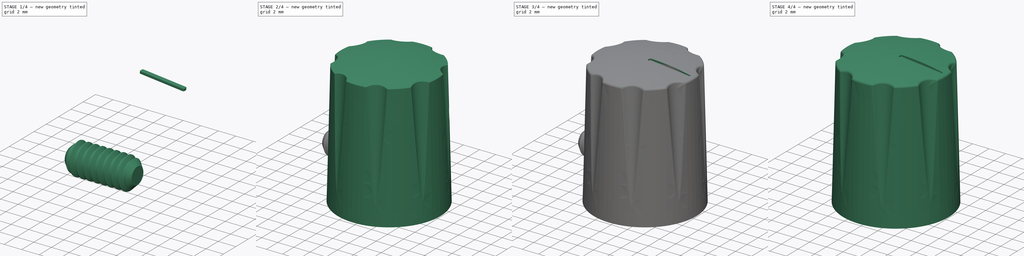
[diagram: build sequence overview — one tinted view per stage of 4, left to right]
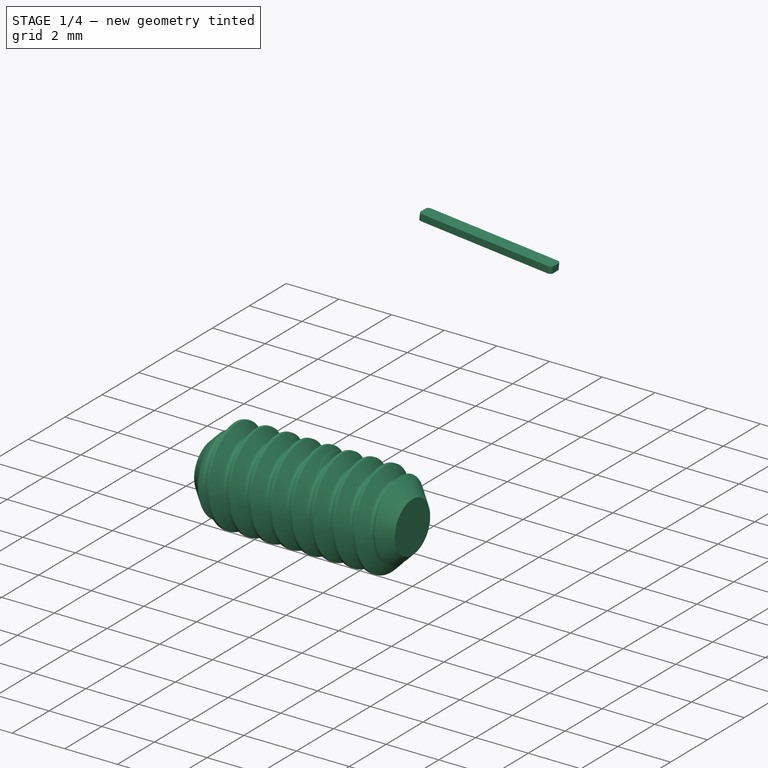
[diagram: stage 1 of 4 — iso view after this stage's code; geometry added in this stage tinted green]
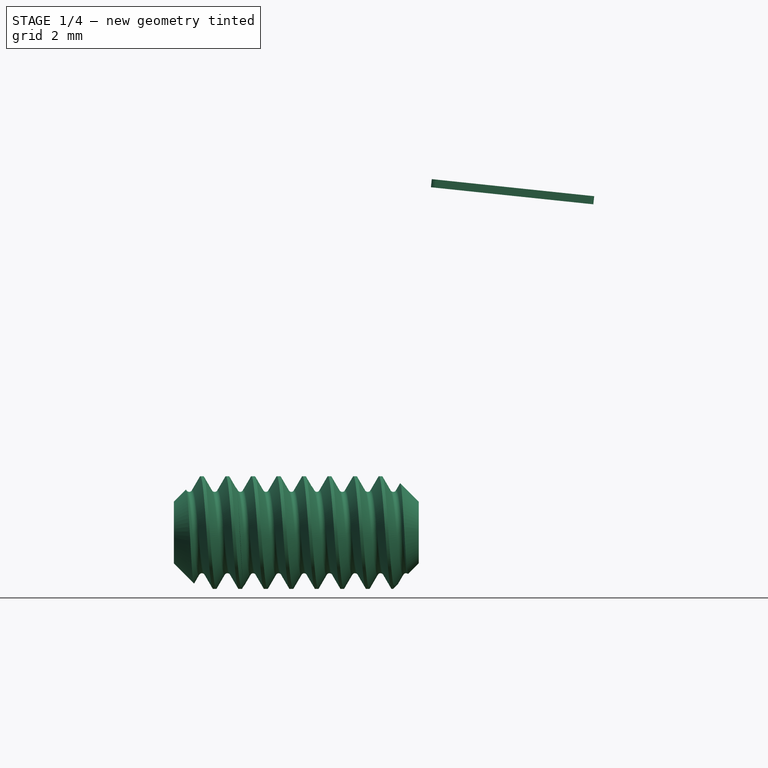
[diagram: stage 1 of 4 — front view after this stage's code; geometry added in this stage tinted green]
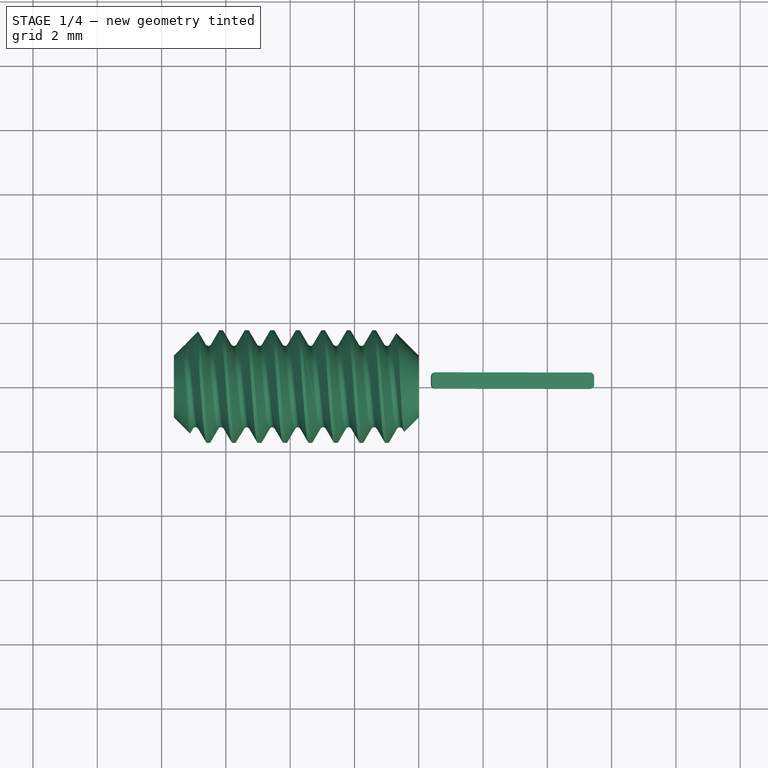
[diagram: stage 1 of 4 — top view after this stage's code; geometry added in this stage tinted green]
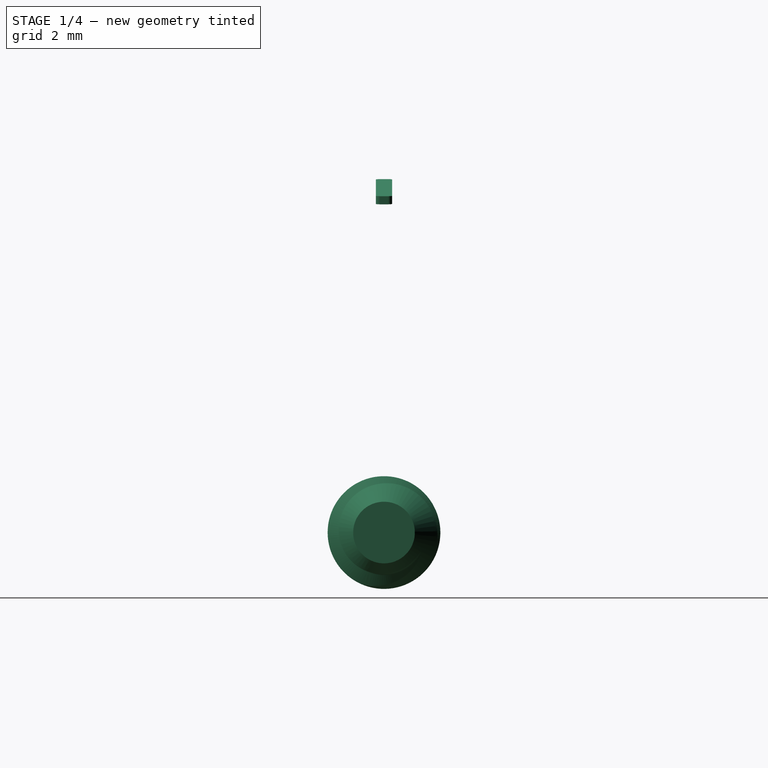
[diagram: stage 1 of 4 — right view after this stage's code; geometry added in this stage tinted green]
FCSTD DOCUMENT  (FreeCAD 0.21R33771 (Git))
Label: davies-1900h
License: All rights reserved
LicenseURL: http://en.wikipedia.org/wiki/All_rights_reserved
objects: Sketcher::SketchObject×5, PartDesign::Pocket×3, PartDesign::Body×2, Part::FeaturePython×2, PartDesign::Revolution×1, PartDesign::PolarPattern×1, PartDesign::Fillet×1, Part::Cut×1, PartDesign::Pad×1, Part::Compound×1
note: 24 computed .brp shape members not serialized (recipe doc carries the construction recipe); baked Part::Feature solids carry a one-line shape summary decoded from their .brp

FEATURE [PartDesign::Body] Body  label="Corps"
  Group = -> [Sketch,Revolution,Sketch001,Pocket,PolarPattern,Fillet,Sketch002,Pocket001,Sketch003,Pocket002]
  Origin = -> Origin
  Tip = -> Pocket001
FEATURE [Part::FeaturePython] ThreadedRod  label="#6x7.619999999999999-ThreadedRod"  # Fasteners workbench fastener (typed FeaturePython)
  Placement = pos=(0,0,4.826) rot=(0,1,0;1.5708rad)
  diameter = 7
  diameterCustom = 6
  invert = false
  leftHanded = false
  length = 7.62
  matchOuter = false
  offset = 0
  pitchCustom = 1
  thread = true
  type = 5
FEATURE [Part::FeaturePython] Screw  label="#6x1/8in-Screw"  # Fasteners workbench fastener (typed FeaturePython)
  Placement = pos=(-5.9436,0,4.826) rot=(0,-1,0;1.5708rad)
  diameter = 7
  invert = false
  leftHanded = false
  length = 0
  lengthCustom = 3.175
  matchOuter = false
  offset = 0
  thread = true
  type = 12
FEATURE [Sketcher::SketchObject] Sketch004
  AttachmentOffset = pos=(-0.127,0,15.621) rot=(0,1,0;0.10472rad)
  FullyConstrained = true
  MapMode = 5
  Placement = pos=(-0.127,0,15.621) rot=(0,1,0;0.10472rad)
  Support = -> [XY_Plane001]
  sketch-geometry (13):
    g0: LineSegment StartX=5.588 StartY=-0.127 StartZ=0 EndX=5.588 EndY=0.127 EndZ=0
    g1: LineSegment StartX=5.461 StartY=0.254 StartZ=0 EndX=0.635 EndY=0.254 EndZ=0
    g2: LineSegment StartX=0.508 StartY=0.127 StartZ=0 EndX=0.508 EndY=-0.127 EndZ=0
    g3: LineSegment StartX=0.635 StartY=-0.254 StartZ=0 EndX=5.461 EndY=-0.254 EndZ=0
    g4: GeomPoint X=3.048 Y=0 Z=0
    g5: ArcOfCircle CenterX=0.635 CenterY=0.127 CenterZ=0 NormalX=0 NormalY=0 NormalZ=1 AngleXU=0 Radius=0.127 StartAngle=1.5708 EndAngle=3.14159
    g6: GeomPoint X=0.508 Y=0.254 Z=0
    g7: ArcOfCircle CenterX=0.635 CenterY=-0.127 CenterZ=0 NormalX=0 NormalY=0 NormalZ=1 AngleXU=0 Radius=0.127 StartAngle=3.14159 EndAngle=4.71239
    g8: GeomPoint X=0.508 Y=-0.254 Z=0
    g9: ArcOfCircle CenterX=5.461 CenterY=-0.127 CenterZ=0 NormalX=0 NormalY=0 NormalZ=1 AngleXU=0 Radius=0.127 StartAngle=4.71239 EndAngle=6.28319
    g10: GeomPoint X=5.588 Y=-0.254 Z=0
    g11: ArcOfCircle CenterX=5.461 CenterY=0.127 CenterZ=0 NormalX=0 NormalY=0 NormalZ=1 AngleXU=0 Radius=0.127 StartAngle=0 EndAngle=1.5708
    g12: GeomPoint X=5.588 Y=0.254 Z=0
  constraints (29):
    c: Horizontal(g1)
    c: Horizontal(g3)
    c: Vertical(g0)
    c: Vertical(g2)
    c: Symmetric(g6,g10,g4)
    c: PointOnObject(g4,g-1)
    c: DistanceY(g8,g6) = 0.508
    c: DistanceX(g6,g12) = 5.08
    c: DistanceX(g-1,g8) = 0.508
    c: PointOnObject(g6,g1)
    c: PointOnObject(g6,g2)
    c: Tangent(g1,g5) = -1.5708
    c: Tangent(g2,g5) = -1.5708
    c: PointOnObject(g8,g2)
    c: PointOnObject(g8,g3)
    c: Tangent(g2,g7) = -1.5708
    c: Tangent(g3,g7) = -1.5708
    c: PointOnObject(g10,g3)
    c: PointOnObject(g10,g0)
    c: Tangent(g3,g9) = -1.5708
    c: Tangent(g0,g9) = -1.5708
    c: PointOnObject(g12,g0)
    c: PointOnObject(g12,g1)
    c: Tangent(g0,g11) = -1.5708
    c: Tangent(g1,g11) = -1.5708
    c: Equal(g5,g7)
    c: Equal(g5,g9)
    c: Equal(g5,g11)
    c: Radius(g5) = 0.127
FEATURE [PartDesign::Pad] Pad
  Direction = (0.104528,0,0.994522)
  Length = 0.254
  Length2 = 10
  Profile = -> Sketch004
  ReferenceAxis = -> Sketch004 [N_Axis]
  Type = 0
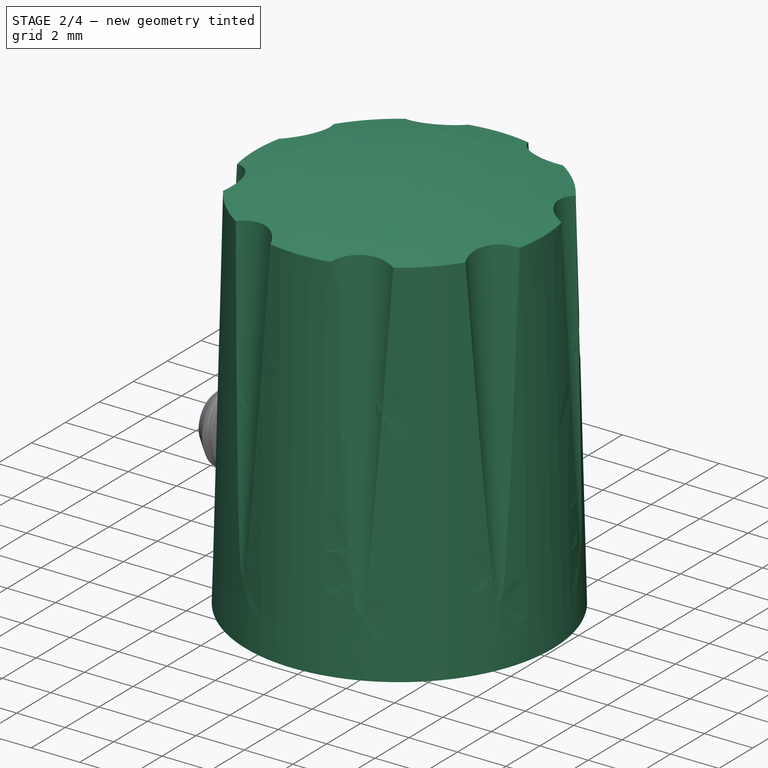
[diagram: stage 2 of 4 — iso view after this stage's code; geometry added in this stage tinted green]
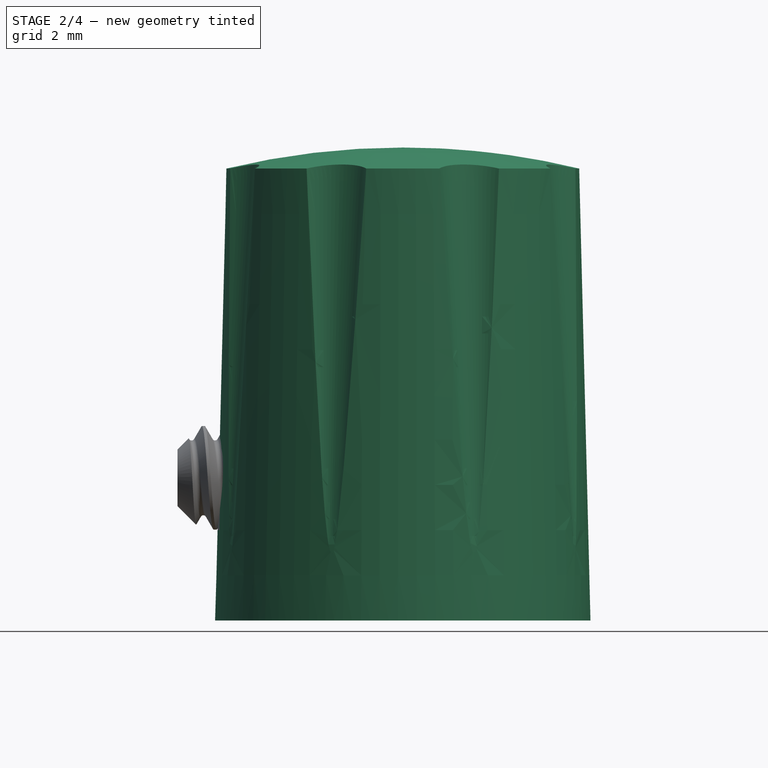
[diagram: stage 2 of 4 — front view after this stage's code; geometry added in this stage tinted green]
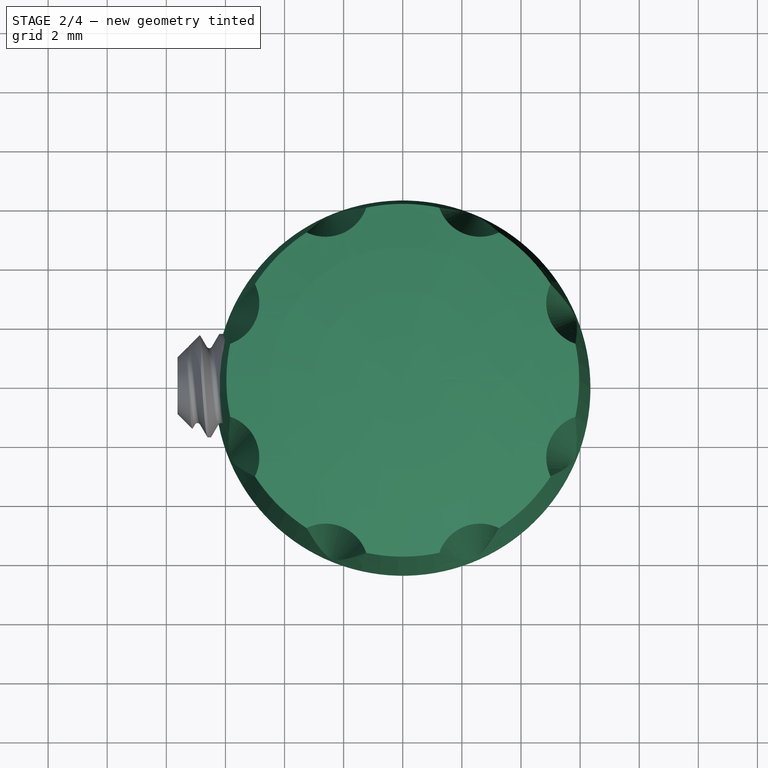
[diagram: stage 2 of 4 — top view after this stage's code; geometry added in this stage tinted green]
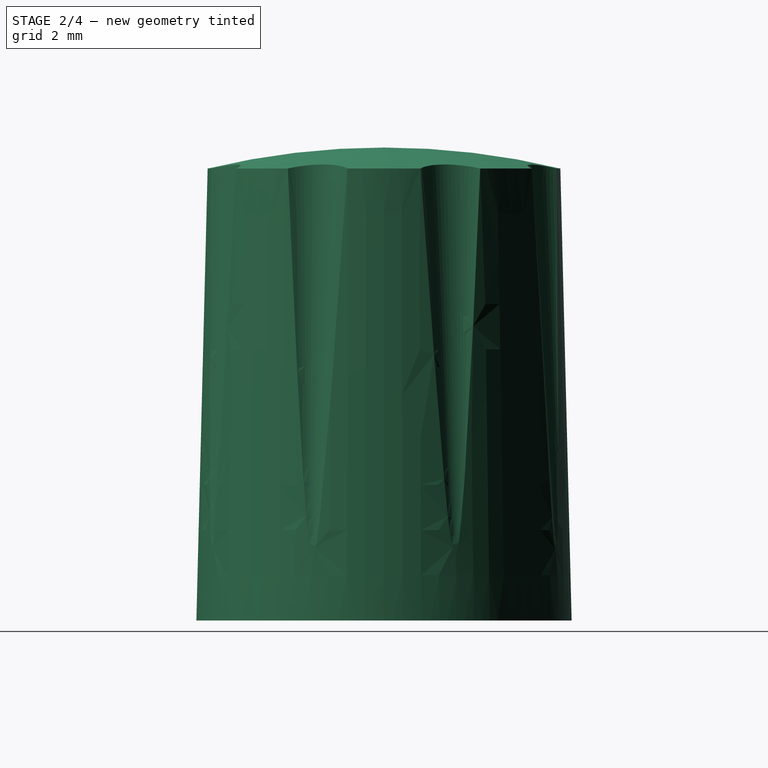
[diagram: stage 2 of 4 — right view after this stage's code; geometry added in this stage tinted green]
FEATURE [Sketcher::SketchObject] Sketch
  FullyConstrained = true
  MapMode = 5
  Placement = pos=(0,0,0) rot=(1,0,0;1.5708rad)
  Support = -> [XZ_Plane]
  sketch-geometry (6):
    g0: ArcOfCircle CenterX=0 CenterY=-9.398 CenterZ=0 NormalX=0 NormalY=0 NormalZ=1 AngleXU=0 Radius=25.4 StartAngle=1.33358 EndAngle=1.5708
    g1: LineSegment StartX=5.969 StartY=15.2907 StartZ=0 EndX=6.35 EndY=0 EndZ=0
    g2: LineSegment StartX=6.35 StartY=0 StartZ=0 EndX=3.175 EndY=0 EndZ=0
    g3: LineSegment StartX=0 StartY=16.002 StartZ=0 EndX=0 EndY=14.5331 EndZ=0
    g4: LineSegment StartX=0 StartY=14.5331 StartZ=0 EndX=3.175 EndY=12.7 EndZ=0
    g5: LineSegment StartX=3.175 StartY=12.7 StartZ=0 EndX=3.175 EndY=0 EndZ=0
  constraints (19):
    c: Coincident(g0,g1)
    c: PointOnObject(g1,g-1)
    c: Coincident(g1,g2)
    c: Coincident(g3,g0)
    c: Vertical(g3)
    c: DistanceY(g-1,g3) = 16.002
    c: Radius(g0) = 25.4
    c: DistanceX(g-1,g0) = 5.969
    c: DistanceX(g-1,g2) = 6.35
    c: PointOnObject(g0,g-2)
    c: Coincident(g4,g5)
    c: Vertical(g5)
    c: DistanceY(g5,g5) = 12.7
    c: Coincident(g2,g5)
    c: Coincident(g3,g4)
    c: Horizontal(g2)
    c: DistanceX(g4,g4) = 3.175
    c: PointOnObject(g3,g-2)
    c: Angle(g4,g5) = 2.0944
FEATURE [PartDesign::Revolution] Revolution  label="MainBodyRevolution"
  Angle = 360
  Axis = (0,-2e-16,1)
  Base = (0,0,0)
  Placement = pos=(0,0,0) rot=(1,0,0;1.5708rad)
  Profile = -> Sketch
  ReferenceAxis = -> Sketch [V_Axis]
  Reversed = true
FEATURE [Sketcher::SketchObject] Sketch001
  AttachmentOffset = pos=(0,0,16.002) rot=(0,0,1;0rad)
  FullyConstrained = true
  MapMode = 5
  Placement = pos=(0,0,16.002) rot=(0,0,1;0rad)
  Support = -> [XY_Plane]
  sketch-geometry (10):
    g0: Circle CenterX=2.62444 CenterY=6.33597 CenterZ=0 NormalX=0 NormalY=0 NormalZ=1 AngleXU=0 Radius=1.524
    g1: LineSegment StartX=-2.62444 StartY=6.33597 StartZ=0 EndX=-6.33597 EndY=2.62444 EndZ=0
    g2: LineSegment StartX=-6.33597 StartY=2.62444 StartZ=0 EndX=-6.33597 EndY=-2.62444 EndZ=0
    g3: LineSegment StartX=-6.33597 StartY=-2.62444 StartZ=0 EndX=-2.62444 EndY=-6.33597 EndZ=0
    g4: LineSegment StartX=-2.62444 StartY=-6.33597 StartZ=0 EndX=2.62444 EndY=-6.33597 EndZ=0
    g5: LineSegment StartX=2.62444 StartY=-6.33597 StartZ=0 EndX=6.33597 EndY=-2.62444 EndZ=0
    g6: LineSegment StartX=6.33597 StartY=-2.62444 StartZ=0 EndX=6.33597 EndY=2.62444 EndZ=0
    g7: LineSegment StartX=6.33597 StartY=2.62444 StartZ=0 EndX=2.62444 EndY=6.33597 EndZ=0
    g8: LineSegment StartX=2.62444 StartY=6.33597 StartZ=0 EndX=-2.62444 EndY=6.33597 EndZ=0
    g9: Circle CenterX=0 CenterY=0 CenterZ=0 NormalX=0 NormalY=0 NormalZ=1 AngleXU=0 Radius=6.858
  constraints (22):
    c: Radius(g0) = 1.524
    c: Coincident(g1,g2)
    c: Coincident(g2,g3)
    c: Coincident(g3,g4)
    c: Coincident(g4,g5)
    c: Coincident(g5,g6)
    c: Coincident(g6,g7)
    c: Coincident(g7,g8)
    c: Coincident(g8,g1)
    c: Equal(g1, g2-g8) x7
    c: PointOnObject(g1,g9)
    c: PointOnObject(g2,g9)
    c: PointOnObject(g3,g9)
    c: PointOnObject(g4,g9)
    c: PointOnObject(g5,g9)
    c: PointOnObject(g6,g9)
    c: PointOnObject(g7,g9)
    c: PointOnObject(g8,g9)
    c: Horizontal(g8)
    c: Coincident(g0,g7)
    c: Diameter(g9) = 13.716
    c: Coincident(g9,g-1)
FEATURE [PartDesign::Pocket] Pocket  label="1stSerrationPocket"
  BaseFeature = -> Revolution
  Direction = (0,0,-1)
  Length = 15.24
  Length2 = 5
  Placement = pos=(0,0,0) rot=(1,0,0;1.5708rad)
  Profile = -> Sketch001
  ReferenceAxis = -> Sketch001 [N_Axis]
  TaperAngle = -4
  Type = 0
FEATURE [PartDesign::PolarPattern] PolarPattern  label="SerrationsPolarPattern"
  Angle = 360
  Axis = -> Sketch001 [N_Axis]
  BaseFeature = -> Pocket
  Occurrences = 8
  Originals = -> [Pocket]
  Placement = pos=(0,0,0) rot=(1,0,0;1.5708rad)
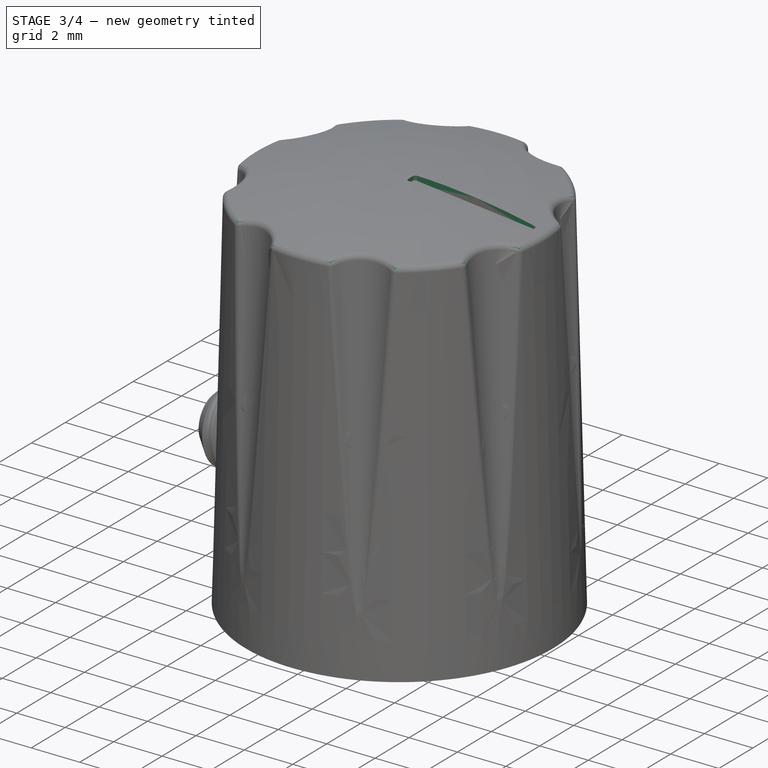
[diagram: stage 3 of 4 — iso view after this stage's code; geometry added in this stage tinted green]
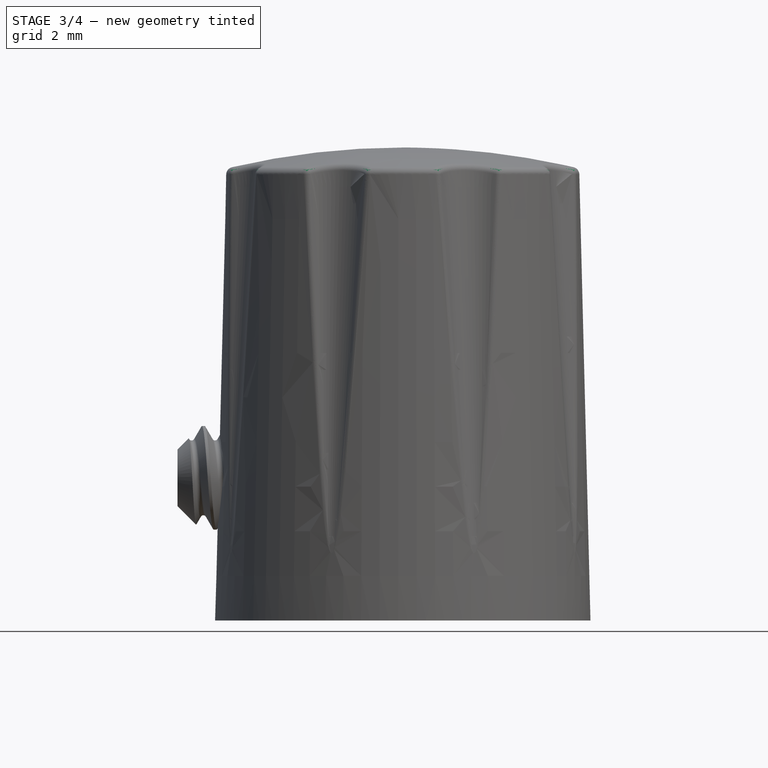
[diagram: stage 3 of 4 — front view after this stage's code; geometry added in this stage tinted green]
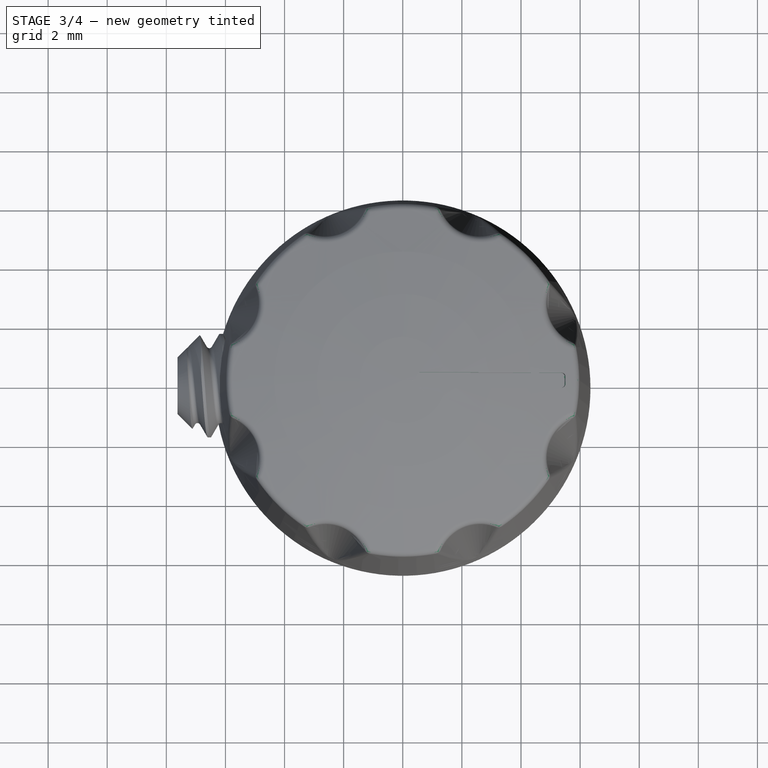
[diagram: stage 3 of 4 — top view after this stage's code; geometry added in this stage tinted green]
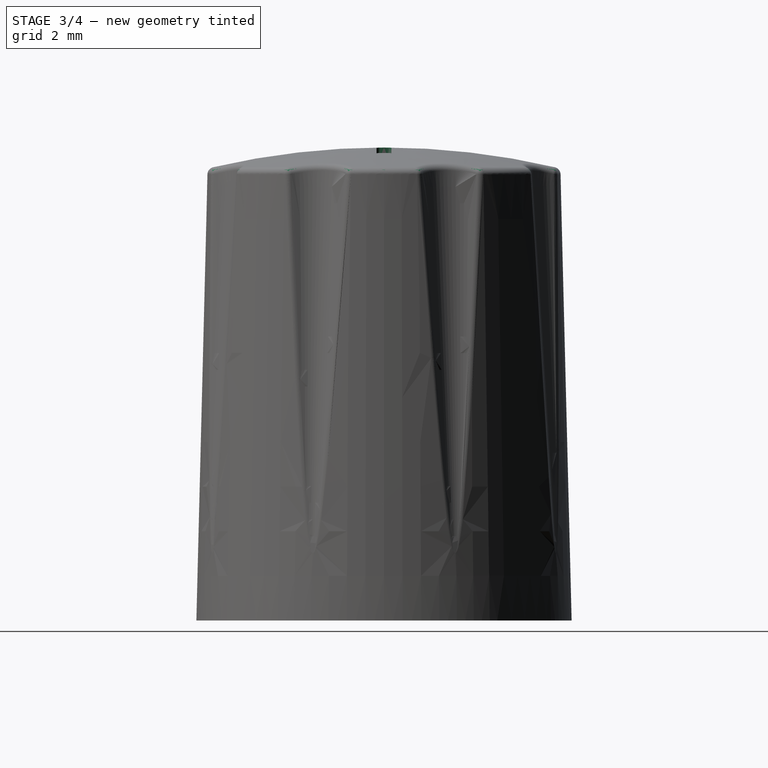
[diagram: stage 3 of 4 — right view after this stage's code; geometry added in this stage tinted green]
FEATURE [PartDesign::Fillet] Fillet
  Base = -> PolarPattern [Face1,Face5,Face6,Face7,Face8,Face9,Face10,Face3,Face4]
  BaseFeature = -> PolarPattern
  Placement = pos=(0,0,0) rot=(1,0,0;1.5708rad)
  Radius = 0.254
  SupportTransform = false
  UseAllEdges = false
FEATURE [Sketcher::SketchObject] Sketch002
  AttachmentOffset = pos=(0,0,16.51) rot=(0,1,0;0.10472rad)
  FullyConstrained = true
  MapMode = 5
  Placement = pos=(0,0,16.51) rot=(0,1,0;0.10472rad)
  Support = -> [XY_Plane]
  sketch-geometry (13):
    g0: LineSegment StartX=5.588 StartY=-0.127 StartZ=0 EndX=5.588 EndY=0.127 EndZ=0
    g1: LineSegment StartX=5.461 StartY=0.254 StartZ=0 EndX=0.635 EndY=0.254 EndZ=0
    g2: LineSegment StartX=0.508 StartY=0.127 StartZ=0 EndX=0.508 EndY=-0.127 EndZ=0
    g3: LineSegment StartX=0.635 StartY=-0.254 StartZ=0 EndX=5.461 EndY=-0.254 EndZ=0
    g4: GeomPoint X=3.048 Y=0 Z=0
    g5: ArcOfCircle CenterX=0.635 CenterY=0.127 CenterZ=0 NormalX=0 NormalY=0 NormalZ=1 AngleXU=0 Radius=0.127 StartAngle=1.5708 EndAngle=3.14159
    g6: GeomPoint X=0.508 Y=0.254 Z=0
    g7: ArcOfCircle CenterX=0.635 CenterY=-0.127 CenterZ=0 NormalX=0 NormalY=0 NormalZ=1 AngleXU=0 Radius=0.127 StartAngle=3.14159 EndAngle=4.71239
    g8: GeomPoint X=0.508 Y=-0.254 Z=0
    g9: ArcOfCircle CenterX=5.461 CenterY=-0.127 CenterZ=0 NormalX=0 NormalY=0 NormalZ=1 AngleXU=0 Radius=0.127 StartAngle=4.71239 EndAngle=6.28319
    g10: GeomPoint X=5.588 Y=-0.254 Z=0
    g11: ArcOfCircle CenterX=5.461 CenterY=0.127 CenterZ=0 NormalX=0 NormalY=0 NormalZ=1 AngleXU=0 Radius=0.127 StartAngle=0 EndAngle=1.5708
    g12: GeomPoint X=5.588 Y=0.254 Z=0
  constraints (29):
    c: Horizontal(g1)
    c: Horizontal(g3)
    c: Vertical(g0)
    c: Vertical(g2)
    c: Symmetric(g6,g10,g4)
    c: PointOnObject(g4,g-1)
    c: DistanceY(g8,g6) = 0.508
    c: DistanceX(g6,g12) = 5.08
    c: DistanceX(g-1,g8) = 0.508
    c: PointOnObject(g6,g1)
    c: PointOnObject(g6,g2)
    c: Tangent(g1,g5) = -1.5708
    c: Tangent(g2,g5) = -1.5708
    c: PointOnObject(g8,g2)
    c: PointOnObject(g8,g3)
    c: Tangent(g2,g7) = -1.5708
    c: Tangent(g3,g7) = -1.5708
    c: PointOnObject(g10,g3)
    c: PointOnObject(g10,g0)
    c: Tangent(g3,g9) = -1.5708
    c: Tangent(g0,g9) = -1.5708
    c: PointOnObject(g12,g0)
    c: PointOnObject(g12,g1)
    c: Tangent(g0,g11) = -1.5708
    c: Tangent(g1,g11) = -1.5708
    c: Equal(g5,g7)
    c: Equal(g5,g9)
    c: Equal(g5,g11)
    c: Radius(g5) = 0.127
FEATURE [PartDesign::Pocket] Pocket001  label="NotchPocket001"
  BaseFeature = -> Fillet
  Direction = (-0.104528,0,-0.994522)
  Length = 0.762
  Length2 = 5
  Placement = pos=(0,0,0) rot=(1,0,0;1.5708rad)
  Profile = -> Sketch002
  ReferenceAxis = -> Sketch002 [N_Axis]
  Type = 0
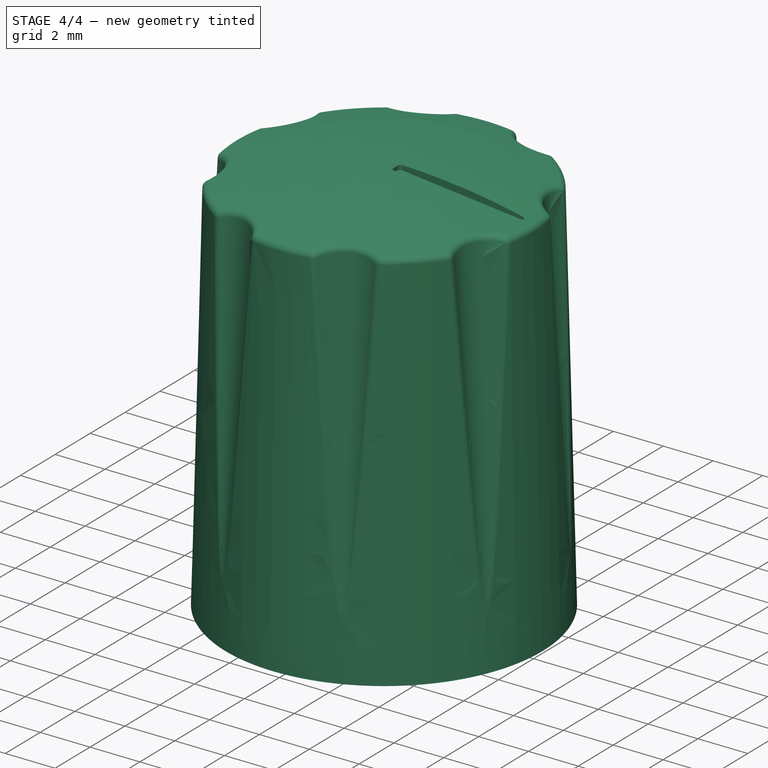
[diagram: stage 4 of 4 — iso view after this stage's code; geometry added in this stage tinted green]
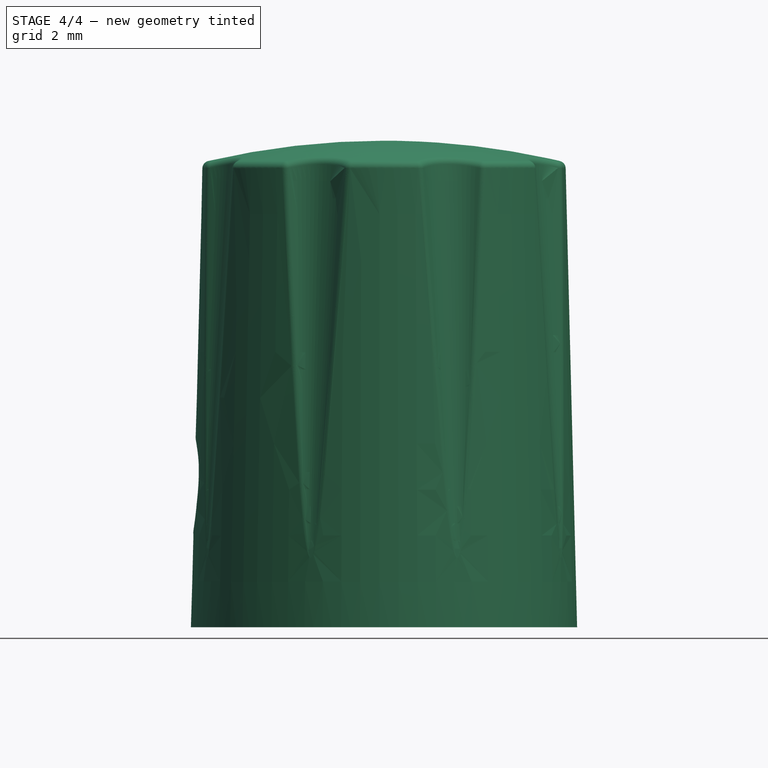
[diagram: stage 4 of 4 — front view after this stage's code; geometry added in this stage tinted green]
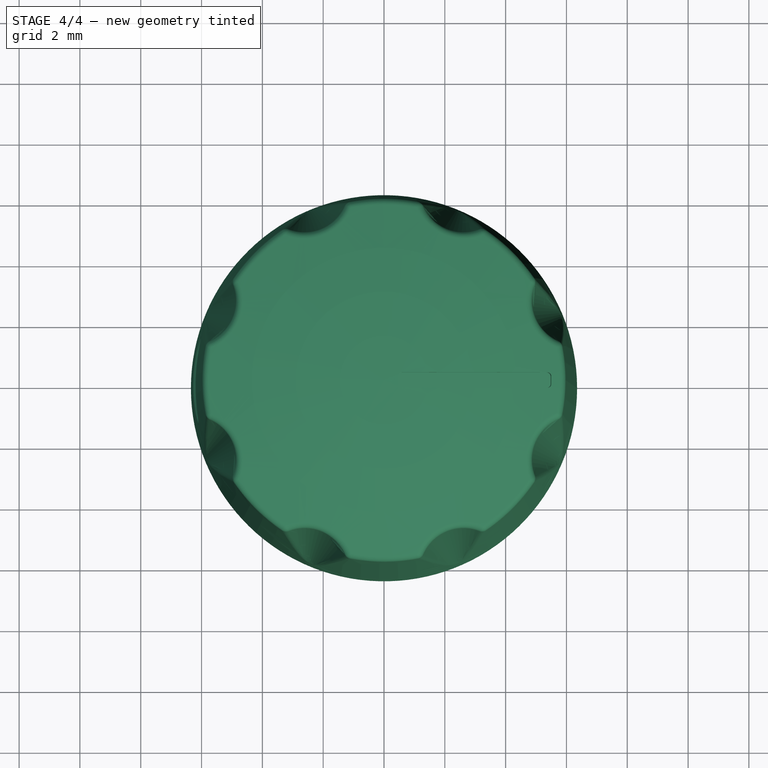
[diagram: stage 4 of 4 — top view after this stage's code; geometry added in this stage tinted green]
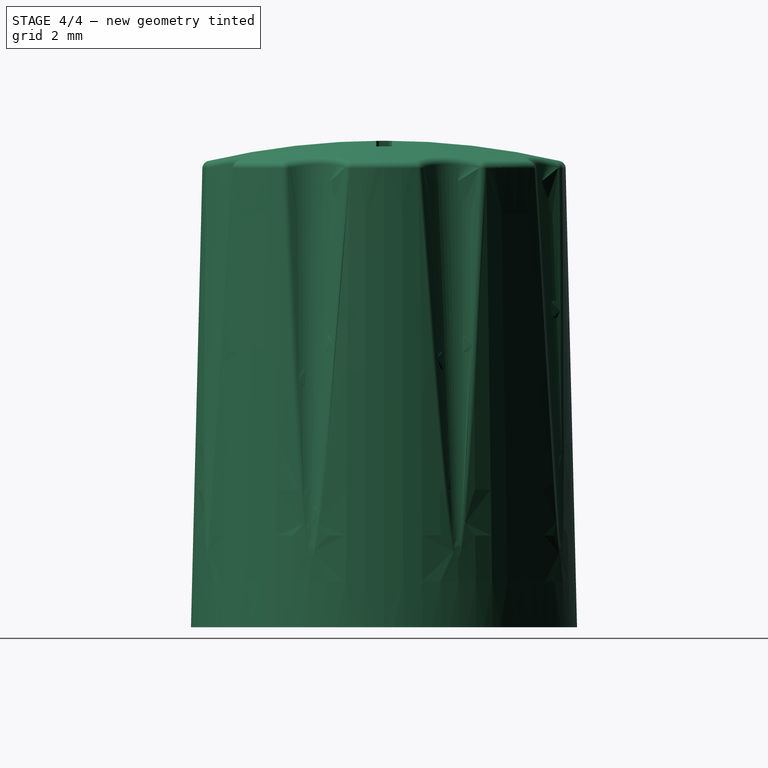
[diagram: stage 4 of 4 — right view after this stage's code; geometry added in this stage tinted green]
FEATURE [Sketcher::SketchObject] Sketch003
  FullyConstrained = true
  MapMode = 5
  Placement = pos=(0,0,0) rot=(0.57735,0.57735,0.57735;2.0944rad)
  Support = -> [YZ_Plane]
  sketch-geometry (1):
    g0: Circle CenterX=0 CenterY=4.826 CenterZ=0 NormalX=0 NormalY=0 NormalZ=1 AngleXU=0 Radius=1.7526
  constraints (3):
    c: PointOnObject(g0,g-2)
    c: DistanceY(g-1,g0) = 4.826
    c: Diameter(g0) = 3.5052
FEATURE [PartDesign::Pocket] Pocket002  label="SetScrewPocket002"
  BaseFeature = -> Pocket001
  Direction = (-1,2e-16,-3e-16)
  Length = 30.48
  Length2 = 5
  Placement = pos=(0,0,0) rot=(1,0,0;1.5708rad)
  Profile = -> Sketch003
  ReferenceAxis = -> Sketch003 [N_Axis]
  Type = 1
FEATURE [Part::Cut] Cut
  Base = -> Body
  Tool = -> ThreadedRod
FEATURE [PartDesign::Body] Body002  label="ColoredNotchCorps002"
  Group = -> [Sketch004,Pad]
  Origin = -> Origin001
  Tip = -> Pad
FEATURE [Part::Compound] Compound
  Links = -> [Cut,Screw,Body002]
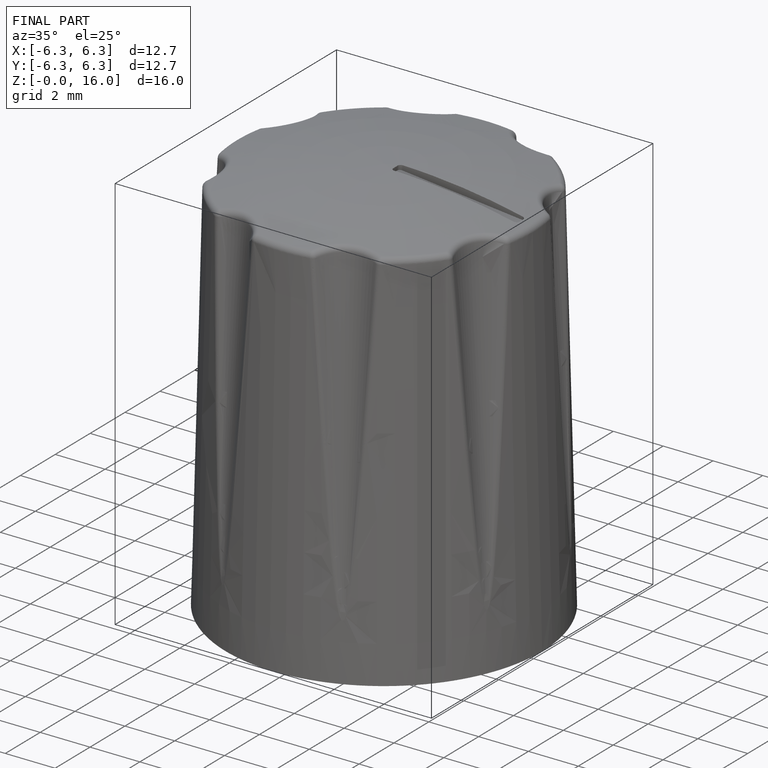
[diagram: finished part — iso view with bounding-box wireframe]
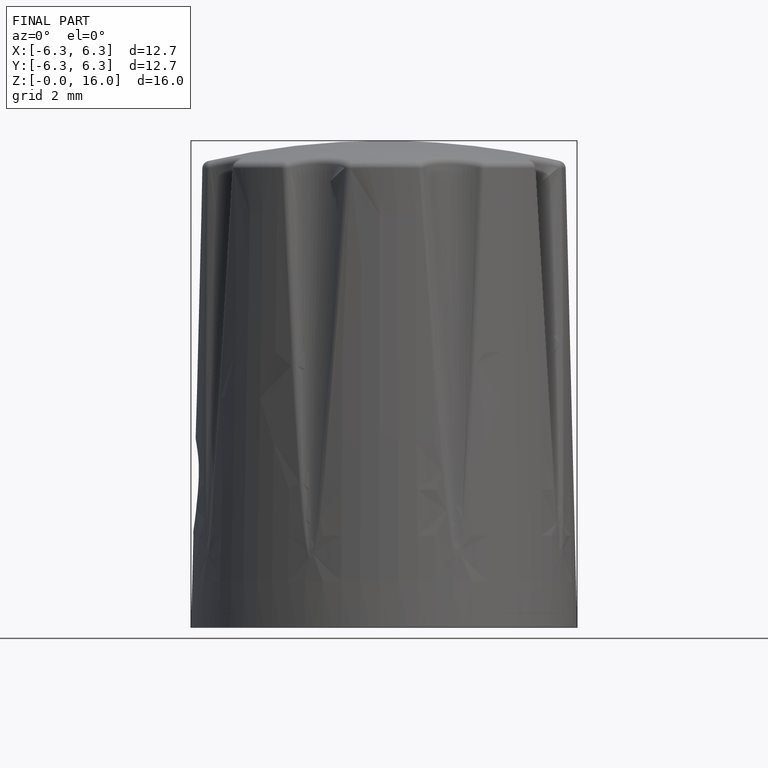
[diagram: finished part — front view with bounding-box wireframe]
